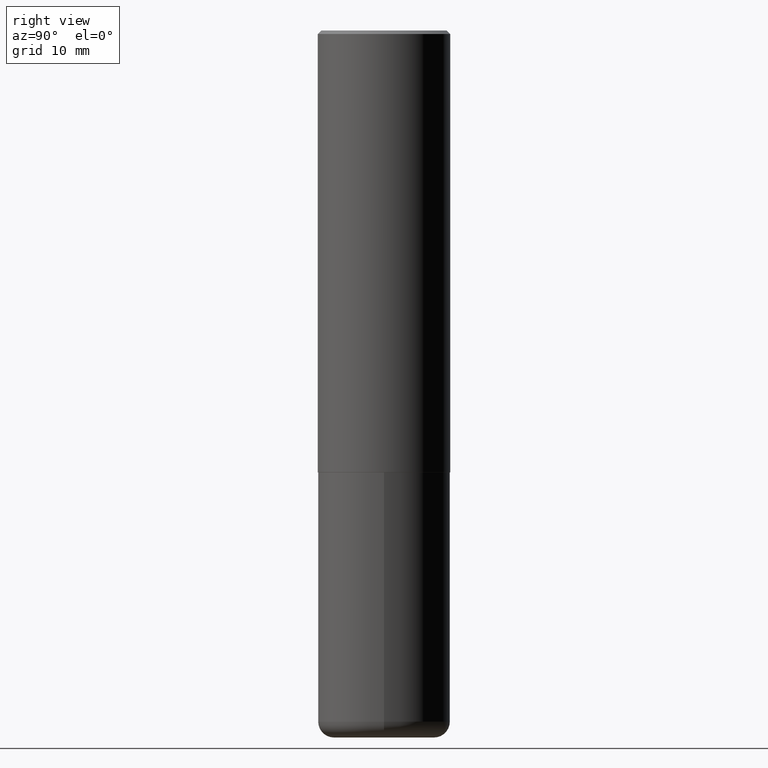
[diagram: clean part render]
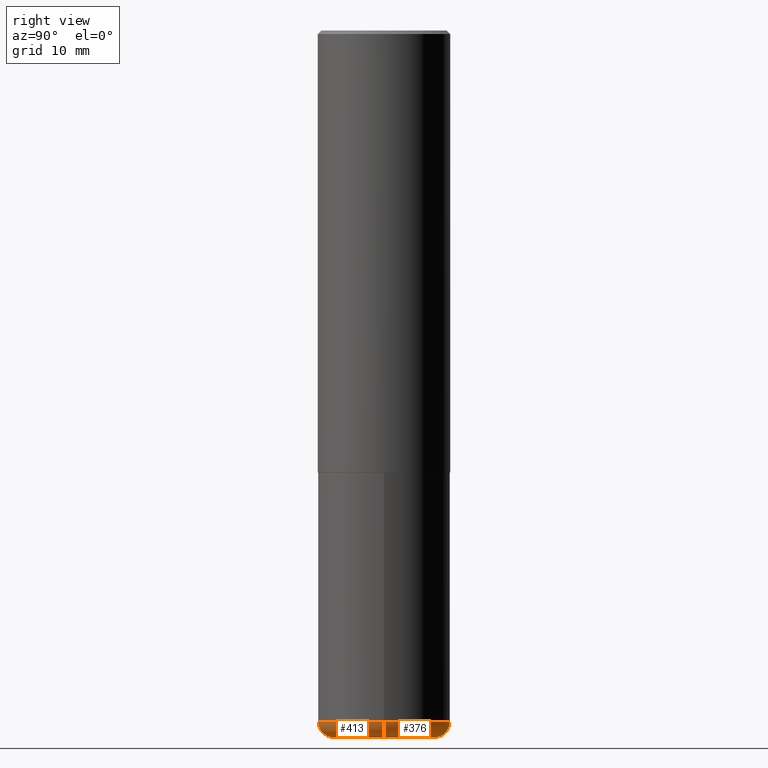
[diagram: same view with one multi-face feature highlighted, each face labeled with its STEP entity id]
A machine part, right view. The highlighted faces form ONE feature: a constant-radius fillet chain: 2 tangent blend faces with common blend radius 2.286 mm. The faces share edges in the B-rep.
Their STEP definitions:
[1] entity #413 (Torus):
#6 = FACE_OUTER_BOUND ( 'NONE', #83, .T. ) ;
#8 = CARTESIAN_POINT ( 'NONE',  ( 9.561783032183883600E-29, -1.365169203487670064E-14, -3.910000000000000142 ) ) ;
#14 = CARTESIAN_POINT ( 'NONE',  ( 0.2850000000000000311, -1.595606971851316740E-14, -4.000000000000000000 ) ) ;
#20 = CIRCLE ( 'NONE', #403, 0.08999999999999992728 ) ;
#25 = ORIENTED_EDGE ( 'NONE', *, *, #164, .F. ) ;
#39 = DIRECTION ( 'NONE',  ( 1.000000000000000000, -6.982962677686263555E-15, 0.000000000000000000 ) ) ;
#40 = CIRCLE ( 'NONE', #108, 0.3749999999999999445 ) ;
#42 = CARTESIAN_POINT ( 'NONE',  ( 0.2850000000000000311, -1.564183639801728729E-14, -3.910000000000000142 ) ) ;
#48 = ORIENTED_EDGE ( 'NONE', *, *, #90, .T. ) ;
#63 = DIRECTION ( 'NONE',  ( 1.000000000000000000, -6.982962677686266711E-15, 0.000000000000000000 ) ) ;
#75 = DIRECTION ( 'NONE',  ( 1.000000000000000000, -6.982962677686273810E-15, 0.000000000000000000 ) ) ;
#83 = EDGE_LOOP ( 'NONE', ( #128, #48, #320, #25 ) ) ;
#84 = DIRECTION ( 'NONE',  ( 7.105427357601001859E-15, 1.000000000000000000, -3.491481338843145583E-15 ) ) ;
#90 = EDGE_CURVE ( 'NONE', #182, #228, #161, .T. ) ;
#106 = CARTESIAN_POINT ( 'NONE',  ( -0.2850000000000000311, -1.146401766711631116E-14, -4.000000000000000000 ) ) ;
#108 = AXIS2_PLACEMENT_3D ( 'NONE', #8, #143, #39 ) ;
#122 = CARTESIAN_POINT ( 'NONE',  ( -0.2850000000000000311, -1.162664523796041410E-14, -3.910000000000000142 ) ) ;
#128 = ORIENTED_EDGE ( 'NONE', *, *, #337, .F. ) ;
#139 = EDGE_CURVE ( 'NONE', #228, #148, #20, .T. ) ;
#143 = DIRECTION ( 'NONE',  ( -2.445468806185136597E-29, 3.491481338843145583E-15, 1.000000000000000000 ) ) ;
#148 = VERTEX_POINT ( 'NONE', #205 ) ;
#153 = DIRECTION ( 'NONE',  ( -1.000000000000000000, 7.105427357600996337E-15, 0.000000000000000000 ) ) ;
#161 = CIRCLE ( 'NONE', #274, 0.2850000000000000311 ) ;
#164 = EDGE_CURVE ( 'NONE', #332, #148, #40, .T. ) ;
#182 = VERTEX_POINT ( 'NONE', #106 ) ;
#193 = AXIS2_PLACEMENT_3D ( 'NONE', #298, #302, #264 ) ;
#205 = CARTESIAN_POINT ( 'NONE',  ( 0.3749999999999999445, -1.627030303900904751E-14, -3.910000000000000142 ) ) ;
#208 = CIRCLE ( 'NONE', #372, 0.08999999999999992728 ) ;
#228 = VERTEX_POINT ( 'NONE', #14 ) ;
#264 = DIRECTION ( 'NONE',  ( 1.000000000000000000, -6.982962677686263555E-15, 4.883557194083111219E-29 ) ) ;
#271 = DIRECTION ( 'NONE',  ( -2.445468806185136597E-29, 3.491481338843145583E-15, 1.000000000000000000 ) ) ;
#274 = AXIS2_PLACEMENT_3D ( 'NONE', #353, #271, #63 ) ;
#298 = CARTESIAN_POINT ( 'NONE',  ( 9.561783032183883600E-29, -1.365169203487670064E-14, -3.910000000000000142 ) ) ;
#302 = DIRECTION ( 'NONE',  ( -2.445468806185136597E-29, 3.491481338843145583E-15, 1.000000000000000000 ) ) ;
#316 = CARTESIAN_POINT ( 'NONE',  ( -0.3749999999999999445, -1.098715677577632652E-14, -3.910000000000000142 ) ) ;
#320 = ORIENTED_EDGE ( 'NONE', *, *, #139, .T. ) ;
#332 = VERTEX_POINT ( 'NONE', #316 ) ;
#335 = DIRECTION ( 'NONE',  ( -6.982962677686266711E-15, -1.000000000000000000, 3.491481338843145583E-15 ) ) ;
#336 = TOROIDAL_SURFACE ( 'NONE', #193, 0.2850000000000000311, 0.08999999999999989952 ) ;
#337 = EDGE_CURVE ( 'NONE', #182, #332, #208, .T. ) ;
#353 = CARTESIAN_POINT ( 'NONE',  ( 9.781875224740546387E-29, -1.396592535537258233E-14, -4.000000000000000000 ) ) ;
#372 = AXIS2_PLACEMENT_3D ( 'NONE', #122, #84, #153 ) ;
#403 = AXIS2_PLACEMENT_3D ( 'NONE', #42, #335, #75 ) ;
#413 = ADVANCED_FACE ( 'NONE', ( #6 ), #336, .T. ) ;
[2] entity #376 (Torus):
#4 = CARTESIAN_POINT ( 'NONE',  ( 9.561783032183883600E-29, -1.365169203487670064E-14, -3.910000000000000142 ) ) ;
#14 = CARTESIAN_POINT ( 'NONE',  ( 0.2850000000000000311, -1.595606971851316740E-14, -4.000000000000000000 ) ) ;
#16 = ORIENTED_EDGE ( 'NONE', *, *, #109, .F. ) ;
#20 = CIRCLE ( 'NONE', #403, 0.08999999999999992728 ) ;
#41 = AXIS2_PLACEMENT_3D ( 'NONE', #218, #408, #118 ) ;
#42 = CARTESIAN_POINT ( 'NONE',  ( 0.2850000000000000311, -1.564183639801728729E-14, -3.910000000000000142 ) ) ;
#61 = CIRCLE ( 'NONE', #306, 0.3749999999999999445 ) ;
#71 = AXIS2_PLACEMENT_3D ( 'NONE', #4, #268, #295 ) ;
#75 = DIRECTION ( 'NONE',  ( 1.000000000000000000, -6.982962677686273810E-15, 0.000000000000000000 ) ) ;
#84 = DIRECTION ( 'NONE',  ( 7.105427357601001859E-15, 1.000000000000000000, -3.491481338843145583E-15 ) ) ;
#106 = CARTESIAN_POINT ( 'NONE',  ( -0.2850000000000000311, -1.146401766711631116E-14, -4.000000000000000000 ) ) ;
#109 = EDGE_CURVE ( 'NONE', #148, #332, #61, .T. ) ;
#118 = DIRECTION ( 'NONE',  ( 1.000000000000000000, -6.982962677686266711E-15, 0.000000000000000000 ) ) ;
#122 = CARTESIAN_POINT ( 'NONE',  ( -0.2850000000000000311, -1.162664523796041410E-14, -3.910000000000000142 ) ) ;
#139 = EDGE_CURVE ( 'NONE', #228, #148, #20, .T. ) ;
#148 = VERTEX_POINT ( 'NONE', #205 ) ;
#153 = DIRECTION ( 'NONE',  ( -1.000000000000000000, 7.105427357600996337E-15, 0.000000000000000000 ) ) ;
#182 = VERTEX_POINT ( 'NONE', #106 ) ;
#192 = DIRECTION ( 'NONE',  ( -2.445468806185136597E-29, 3.491481338843145583E-15, 1.000000000000000000 ) ) ;
#195 = FACE_OUTER_BOUND ( 'NONE', #342, .T. ) ;
#204 = CARTESIAN_POINT ( 'NONE',  ( 9.561783032183883600E-29, -1.365169203487670064E-14, -3.910000000000000142 ) ) ;
#205 = CARTESIAN_POINT ( 'NONE',  ( 0.3749999999999999445, -1.627030303900904751E-14, -3.910000000000000142 ) ) ;
#208 = CIRCLE ( 'NONE', #372, 0.08999999999999992728 ) ;
#212 = ORIENTED_EDGE ( 'NONE', *, *, #339, .T. ) ;
#214 = ORIENTED_EDGE ( 'NONE', *, *, #139, .F. ) ;
#218 = CARTESIAN_POINT ( 'NONE',  ( 9.781875224740546387E-29, -1.396592535537258233E-14, -4.000000000000000000 ) ) ;
#228 = VERTEX_POINT ( 'NONE', #14 ) ;
#268 = DIRECTION ( 'NONE',  ( -2.445468806185136597E-29, 3.491481338843145583E-15, 1.000000000000000000 ) ) ;
#295 = DIRECTION ( 'NONE',  ( 1.000000000000000000, -6.982962677686263555E-15, 4.883557194083111219E-29 ) ) ;
#296 = DIRECTION ( 'NONE',  ( 1.000000000000000000, -6.982962677686263555E-15, 0.000000000000000000 ) ) ;
#306 = AXIS2_PLACEMENT_3D ( 'NONE', #204, #192, #296 ) ;
#316 = CARTESIAN_POINT ( 'NONE',  ( -0.3749999999999999445, -1.098715677577632652E-14, -3.910000000000000142 ) ) ;
#332 = VERTEX_POINT ( 'NONE', #316 ) ;
#334 = CIRCLE ( 'NONE', #41, 0.2850000000000000311 ) ;
#335 = DIRECTION ( 'NONE',  ( -6.982962677686266711E-15, -1.000000000000000000, 3.491481338843145583E-15 ) ) ;
#337 = EDGE_CURVE ( 'NONE', #182, #332, #208, .T. ) ;
#339 = EDGE_CURVE ( 'NONE', #228, #182, #334, .T. ) ;
#342 = EDGE_LOOP ( 'NONE', ( #212, #350, #16, #214 ) ) ;
#350 = ORIENTED_EDGE ( 'NONE', *, *, #337, .T. ) ;
#372 = AXIS2_PLACEMENT_3D ( 'NONE', #122, #84, #153 ) ;
#376 = ADVANCED_FACE ( 'NONE', ( #195 ), #404, .T. ) ;
#403 = AXIS2_PLACEMENT_3D ( 'NONE', #42, #335, #75 ) ;
#404 = TOROIDAL_SURFACE ( 'NONE', #71, 0.2850000000000000311, 0.08999999999999989952 ) ;
#408 = DIRECTION ( 'NONE',  ( -2.445468806185136597E-29, 3.491481338843145583E-15, 1.000000000000000000 ) ) ;